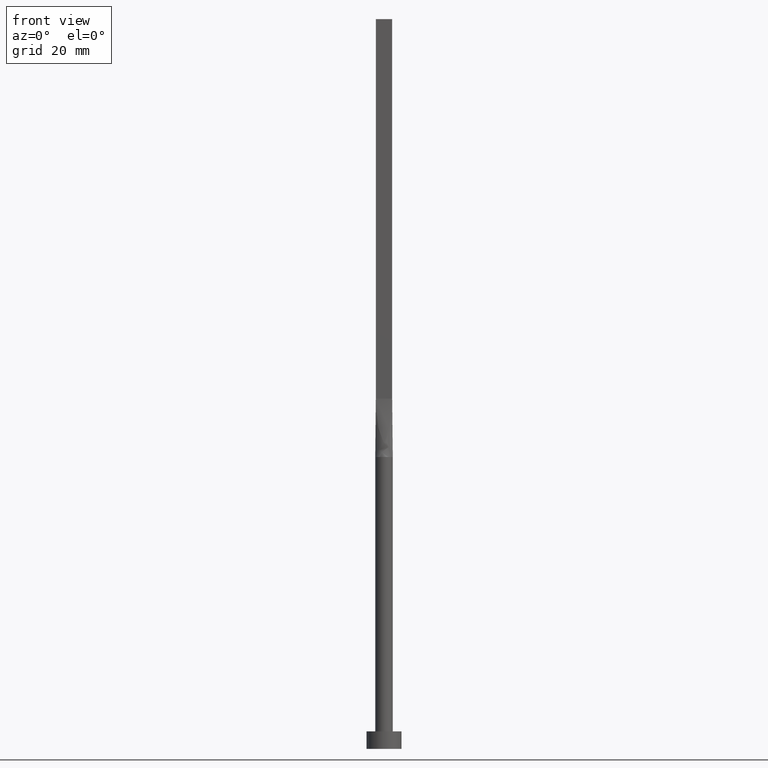
[diagram: clean part render]
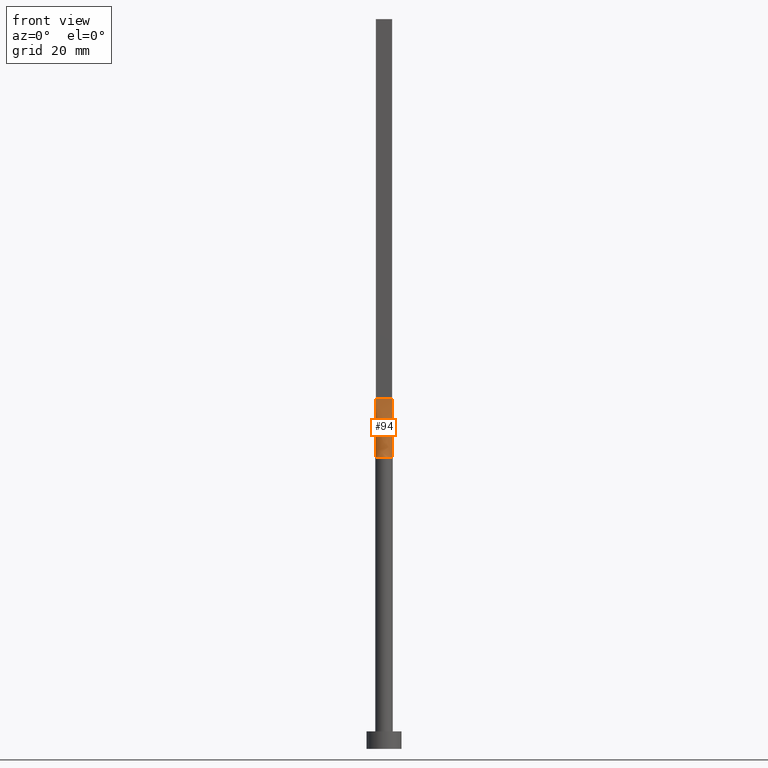
[diagram: same view with one face highlighted and labeled with its STEP entity id]
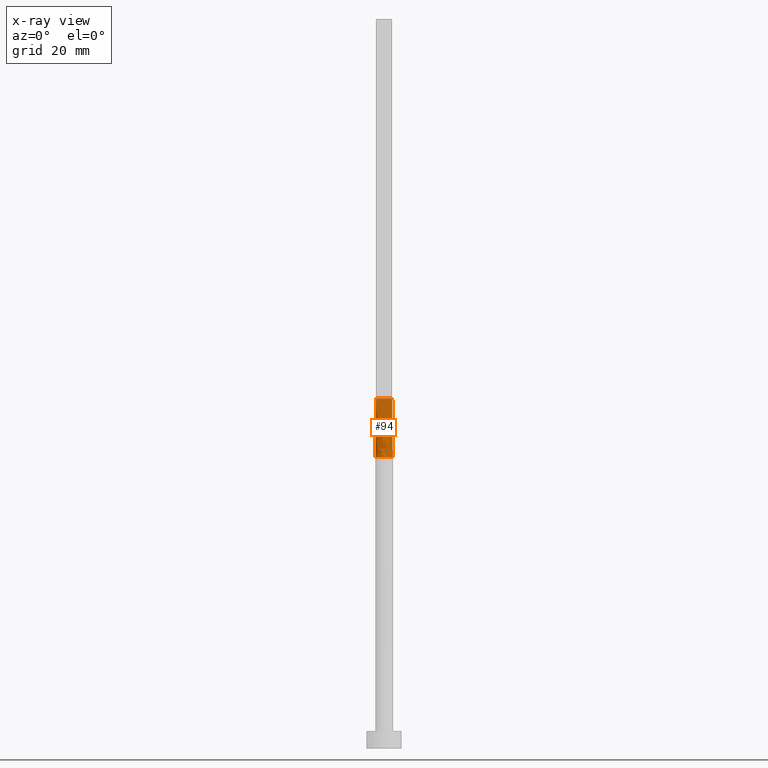
[diagram: x-ray of the same camera — body ghosted, the highlighted face saturated]
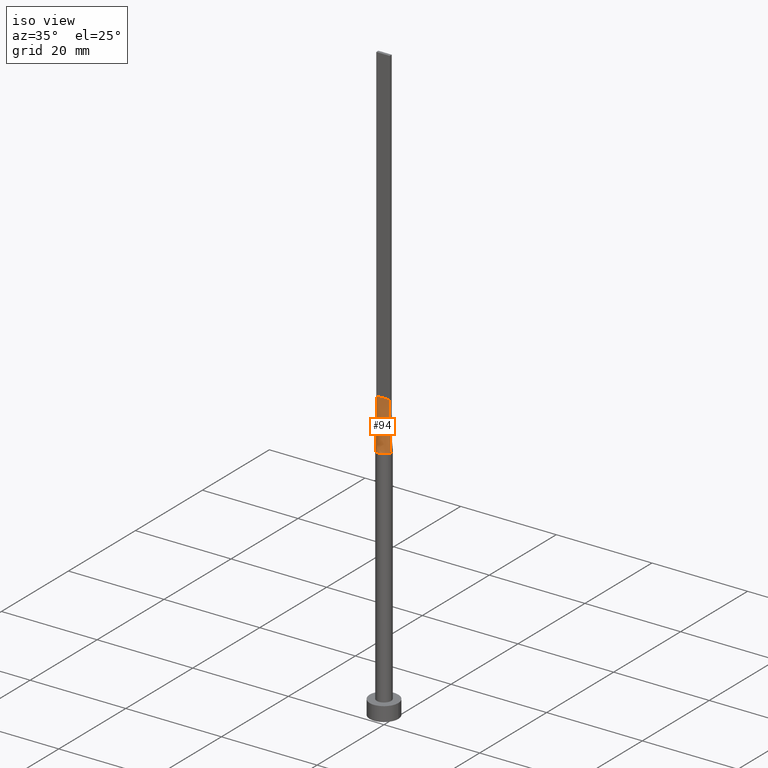
[diagram: same view with one face highlighted and labeled with its STEP entity id]
A machine part, front view. The second image highlights one B-rep face of the part: STEP entity #94.
The next image is the same camera in x-ray: the body ghosted, the highlighted face saturated — about 0% of this face is hidden behind the body in this view.
A second angle (iso view) of the same face is appended — the face is thin or edge-on in the first view.
In plain terms, the highlighted face is a freeform B-spline surface patch.
Its self-contained STEP definition (entity closure, byte-faithful):
#2 = CARTESIAN_POINT ( 'NONE',  ( 0.7614511870148451544, -1.306864626778804439, 49.99999999999999289 ) ) ;
#5 = CARTESIAN_POINT ( 'NONE',  ( -0.8166666666666674290, -0.2999999999999996003, 60.00000000000000000 ) ) ;
#11 = VERTEX_POINT ( 'NONE', #441 ) ;
#16 = CARTESIAN_POINT ( 'NONE',  ( -1.399999999999999911, -0.2999999999999996003, 60.00000000000000711 ) ) ;
#23 = LINE ( 'NONE', #297, #488 ) ;
#37 = CARTESIAN_POINT ( 'NONE',  ( 0.1166666666666654889, -0.2999999999999997113, 60.00000000000000000 ) ) ;
#39 = VECTOR ( 'NONE', #383, 1000.000000000000000 ) ;
#65 = DIRECTION ( 'NONE',  ( -0.006670206908340743472, -0.001429330051787282068, -0.9999767324070110153 ) ) ;
#77 = CARTESIAN_POINT ( 'NONE',  ( 1.433351810558057160, -0.3071468165481548440, 55.00000000000000711 ) ) ;
#78 = FACE_OUTER_BOUND ( 'NONE', #185, .T. ) ;
#81 = CARTESIAN_POINT ( 'NONE',  ( 0.9333333333333325710, -0.2999999999999997113, 60.00000000000000000 ) ) ;
#94 = ADVANCED_FACE ( 'NONE', ( #78 ), #117, .T. ) ;
#117 = B_SPLINE_SURFACE_WITH_KNOTS ( 'NONE', 3, 1, ( 
 ( #124, #127 ),
 ( #126, #215 ),
 ( #399, #308 ),
 ( #451, #409 ),
 ( #578, #5 ),
 ( #484, #180 ),
 ( #262, #536 ),
 ( #132, #265 ),
 ( #443, #450 ),
 ( #310, #37 ),
 ( #171, #223 ),
 ( #2, #581 ),
 ( #405, #174 ),
 ( #351, #311 ),
 ( #489, #81 ),
 ( #547, #452 ),
 ( #553, #234 ),
 ( #540, #413 ) ),
 .UNSPECIFIED., .F., .F., .F.,
 ( 4, 2, 2, 2, 2, 2, 2, 2, 4 ),
 ( 2, 2 ),
 ( 0.000000000000000000, 0.1250000000000000000, 0.2500000000000000000, 0.3750000000000000000, 0.5000000000000000000, 0.6250000000000000000, 0.7500000000000000000, 0.8750000000000000000, 1.000000000000000000 ),
 ( 0.000000000000000000, 1.000000000000000000 ),
 .UNSPECIFIED. ) ;
#124 = CARTESIAN_POINT ( 'NONE',  ( -1.466703621116114409, -0.3142936330963096436, 50.00000000000000000 ) ) ;
#126 = CARTESIAN_POINT ( 'NONE',  ( -1.441093865018553632, -0.4338058282182608583, 50.00000000000001421 ) ) ;
#127 = CARTESIAN_POINT ( 'NONE',  ( -1.399999999999999911, -0.2999999999999996003, 60.00000000000000711 ) ) ;
#131 = AXIS2_PLACEMENT_3D ( 'NONE', #333, #564, #261 ) ;
#132 = CARTESIAN_POINT ( 'NONE',  ( -0.4035854070682473038, -1.457676878506884988, 50.00000000000000711 ) ) ;
#171 = CARTESIAN_POINT ( 'NONE',  ( 0.4035854070682468042, -1.457676878506885210, 50.00000000000000000 ) ) ;
#174 = CARTESIAN_POINT ( 'NONE',  ( 0.5833333333333323711, -0.2999999999999997113, 60.00000000000000000 ) ) ;
#180 = CARTESIAN_POINT ( 'NONE',  ( -0.5833333333333343695, -0.2999999999999996558, 60.00000000000000000 ) ) ;
#185 = EDGE_LOOP ( 'NONE', ( #412, #360, #533, #350 ) ) ;
#195 = EDGE_CURVE ( 'NONE', #545, #11, #23, .T. ) ;
#215 = CARTESIAN_POINT ( 'NONE',  ( -1.283333333333333437, -0.2999999999999996003, 60.00000000000000711 ) ) ;
#223 = CARTESIAN_POINT ( 'NONE',  ( 0.2333333333333321713, -0.2999999999999997113, 60.00000000000000000 ) ) ;
#234 = CARTESIAN_POINT ( 'NONE',  ( 1.283333333333332993, -0.2999999999999997113, 60.00000000000000000 ) ) ;
#261 = DIRECTION ( 'NONE',  ( 1.000000000000000000, 0.000000000000000000, 0.000000000000000000 ) ) ;
#262 = CARTESIAN_POINT ( 'NONE',  ( -0.7614511870148455985, -1.306864626778803995, 50.00000000000000000 ) ) ;
#264 = EDGE_CURVE ( 'NONE', #545, #407, #327, .T. ) ;
#265 = CARTESIAN_POINT ( 'NONE',  ( -0.2333333333333345028, -0.2999999999999997113, 60.00000000000000000 ) ) ;
#297 = CARTESIAN_POINT ( 'NONE',  ( -1.433351810558057160, -0.3071468165481546220, 55.00000000000000711 ) ) ;
#308 = CARTESIAN_POINT ( 'NONE',  ( -1.166666666666666963, -0.2999999999999996003, 60.00000000000000711 ) ) ;
#310 = CARTESIAN_POINT ( 'NONE',  ( 0.2021039475585061640, -1.499999999999999778, 49.99999999999999289 ) ) ;
#311 = CARTESIAN_POINT ( 'NONE',  ( 0.8166666666666658747, -0.2999999999999997113, 60.00000000000000000 ) ) ;
#327 = LINE ( 'NONE', #16, #39 ) ;
#333 = CARTESIAN_POINT ( 'NONE',  ( 0.000000000000000000, 0.000000000000000000, 50.00000000000000000 ) ) ;
#335 = VECTOR ( 'NONE', #566, 1000.000000000000114 ) ;
#350 = ORIENTED_EDGE ( 'NONE', *, *, #195, .T. ) ;
#351 = CARTESIAN_POINT ( 'NONE',  ( 1.167251067653077401, -0.9579686032593089928, 50.00000000000000711 ) ) ;
#360 = ORIENTED_EDGE ( 'NONE', *, *, #550, .T. ) ;
#363 = VERTEX_POINT ( 'NONE', #556 ) ;
#383 = DIRECTION ( 'NONE',  ( 1.000000000000000000, -5.808225924029488744E-17, 0.000000000000000000 ) ) ;
#385 = CARTESIAN_POINT ( 'NONE',  ( 1.399999999999999911, -0.2999999999999997669, 60.00000000000000711 ) ) ;
#391 = LINE ( 'NONE', #77, #335 ) ;
#399 = CARTESIAN_POINT ( 'NONE',  ( -1.398339371956842880, -0.5625704264602655602, 50.00000000000000711 ) ) ;
#405 = CARTESIAN_POINT ( 'NONE',  ( 0.9173979595380676866, -1.199399801402031063, 50.00000000000001421 ) ) ;
#407 = VERTEX_POINT ( 'NONE', #385 ) ;
#409 = CARTESIAN_POINT ( 'NONE',  ( -0.9333333333333340143, -0.2999999999999996003, 60.00000000000000000 ) ) ;
#412 = ORIENTED_EDGE ( 'NONE', *, *, #457, .T. ) ;
#413 = CARTESIAN_POINT ( 'NONE',  ( 1.399999999999999911, -0.2999999999999997669, 60.00000000000000711 ) ) ;
#441 = CARTESIAN_POINT ( 'NONE',  ( -1.466837926445876628, -0.3143226152917824034, 50.00000000000000000 ) ) ;
#443 = CARTESIAN_POINT ( 'NONE',  ( -0.2021039475585066081, -1.499999999999999778, 50.00000000000000711 ) ) ;
#445 = CIRCLE ( 'NONE', #131, 1.500000000000000222 ) ;
#450 = CARTESIAN_POINT ( 'NONE',  ( -0.1166666666666678620, -0.2999999999999997669, 60.00000000000000000 ) ) ;
#451 = CARTESIAN_POINT ( 'NONE',  ( -1.261673556793542206, -0.8246322331683838547, 49.99999999999997868 ) ) ;
#452 = CARTESIAN_POINT ( 'NONE',  ( 1.166666666666666075, -0.2999999999999997113, 60.00000000000000000 ) ) ;
#457 = EDGE_CURVE ( 'NONE', #11, #363, #445, .T. ) ;
#479 = CARTESIAN_POINT ( 'NONE',  ( -1.399999999999999911, -0.2999999999999996003, 60.00000000000000711 ) ) ;
#484 = CARTESIAN_POINT ( 'NONE',  ( -0.9173979595380682417, -1.199399801402030397, 50.00000000000000711 ) ) ;
#488 = VECTOR ( 'NONE', #65, 1000.000000000000114 ) ;
#489 = CARTESIAN_POINT ( 'NONE',  ( 1.261673556793541762, -0.8246322331683848539, 50.00000000000000000 ) ) ;
#533 = ORIENTED_EDGE ( 'NONE', *, *, #264, .F. ) ;
#536 = CARTESIAN_POINT ( 'NONE',  ( -0.4666666666666677288, -0.2999999999999997113, 60.00000000000000000 ) ) ;
#540 = CARTESIAN_POINT ( 'NONE',  ( 1.466703621116114409, -0.3142936330963098657, 50.00000000000000000 ) ) ;
#545 = VERTEX_POINT ( 'NONE', #479 ) ;
#547 = CARTESIAN_POINT ( 'NONE',  ( 1.398339371956842880, -0.5625704264602661153, 50.00000000000000711 ) ) ;
#550 = EDGE_CURVE ( 'NONE', #363, #407, #391, .T. ) ;
#553 = CARTESIAN_POINT ( 'NONE',  ( 1.441093865018553410, -0.4338058282182614689, 50.00000000000000711 ) ) ;
#556 = CARTESIAN_POINT ( 'NONE',  ( 1.466854622690809462, -0.3143260906982852099, 50.00000000000000000 ) ) ;
#564 = DIRECTION ( 'NONE',  ( 0.000000000000000000, 0.000000000000000000, 1.000000000000000000 ) ) ;
#566 = DIRECTION ( 'NONE',  ( -0.006670206908340743472, 0.001429330051787287706, 0.9999767324070110153 ) ) ;
#578 = CARTESIAN_POINT ( 'NONE',  ( -1.167251067653077845, -0.9579686032593084377, 50.00000000000001421 ) ) ;
#581 = CARTESIAN_POINT ( 'NONE',  ( 0.4666666666666655638, -0.2999999999999997113, 60.00000000000000000 ) ) ;